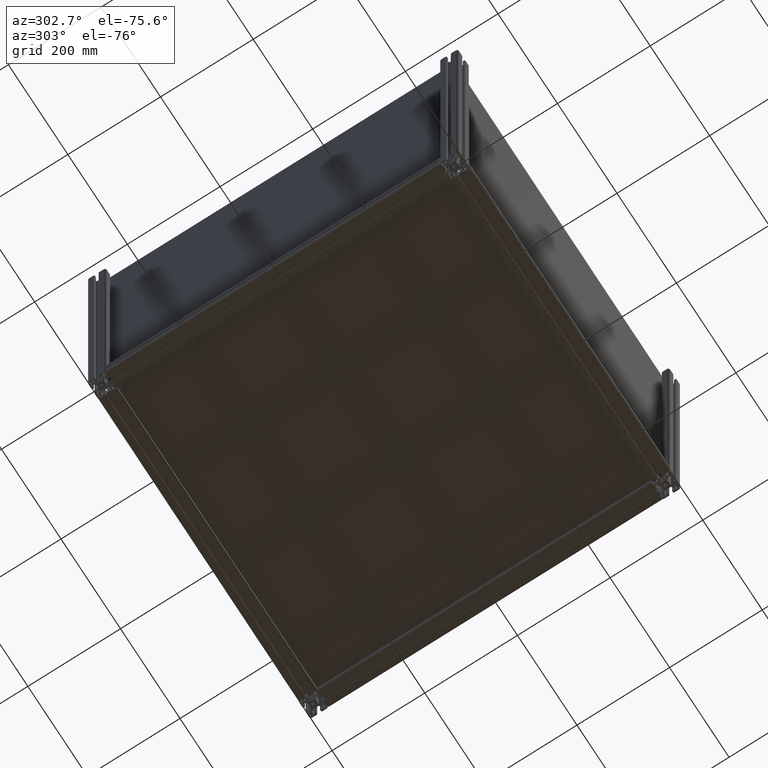
[diagram: clean part render]
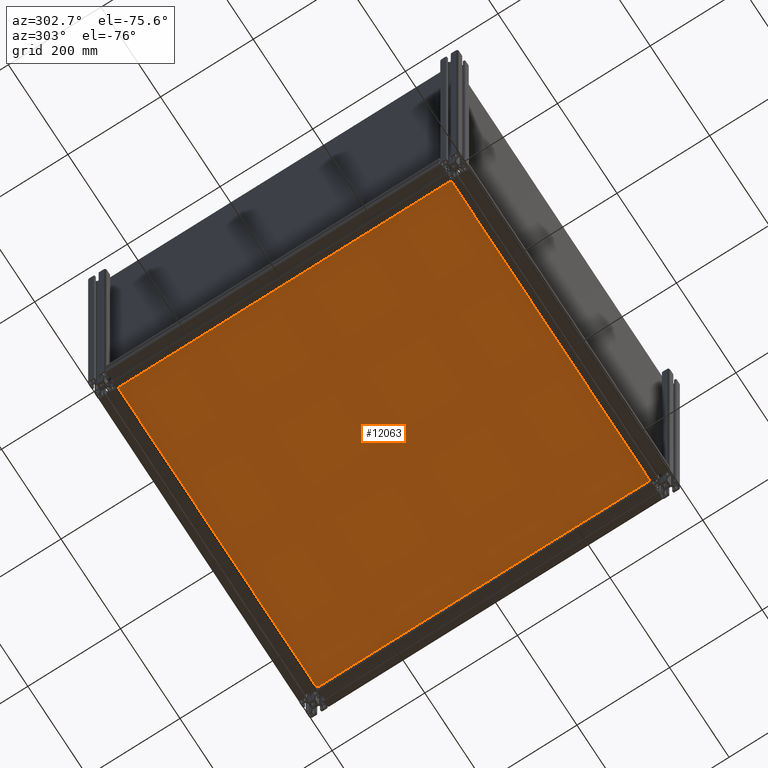
[diagram: same view with one face highlighted and labeled with its STEP entity id]
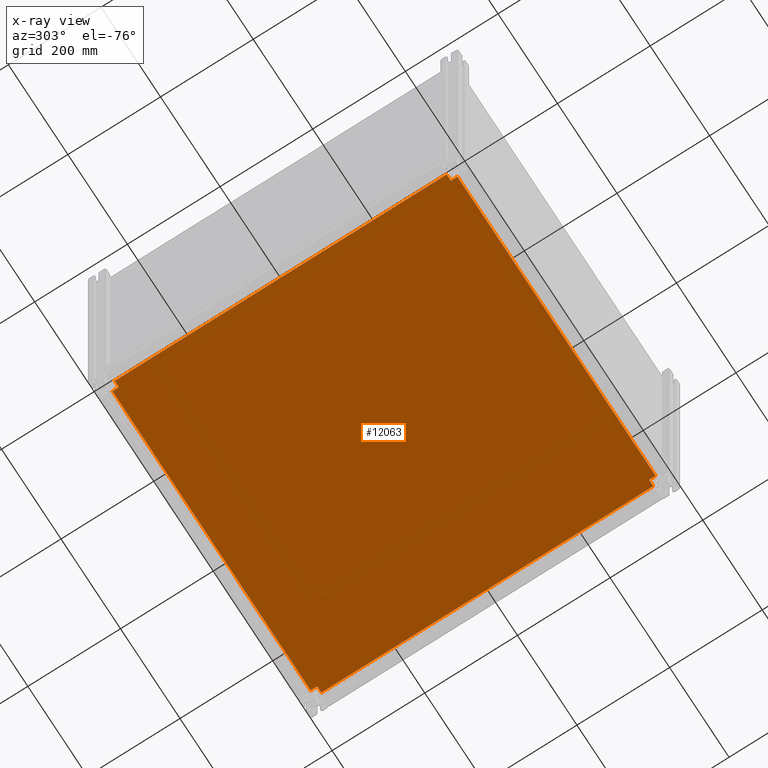
[diagram: x-ray of the same camera — body ghosted, the highlighted face saturated]
A machine part, auxiliary view. The second image highlights one B-rep face of the part: STEP entity #12063.
The next image is the same camera in x-ray: the body ghosted, the highlighted face saturated — about 0% of this face is hidden behind the body in this view.
In plain terms, the highlighted planar face has unit normal (0, 0, 1).
Its self-contained STEP definition (entity closure, byte-faithful):
#89 = ORIENTED_EDGE ( 'NONE', *, *, #271, .F. ) ;
#271 = EDGE_CURVE ( 'NONE', #13775, #2434, #14821, .T. ) ;
#292 = ORIENTED_EDGE ( 'NONE', *, *, #2234, .F. ) ;
#802 = CARTESIAN_POINT ( 'NONE',  ( -600.7269624573378906, 257.8730375426625301, -2.000000000000000000 ) ) ;
#907 = LINE ( 'NONE', #1103, #934 ) ;
#934 = VECTOR ( 'NONE', #6260, 1000.000000000000000 ) ;
#984 = CARTESIAN_POINT ( 'NONE',  ( -600.7269624573378906, -486.9269624573379929, -2.000000000000000000 ) ) ;
#1097 = AXIS2_PLACEMENT_3D ( 'NONE', #13918, #10070, #6105 ) ;
#1103 = CARTESIAN_POINT ( 'NONE',  ( -586.7269624573381179, 257.8730375426625301, -2.000000000000000000 ) ) ;
#1586 = LINE ( 'NONE', #9046, #6793 ) ;
#1818 = CARTESIAN_POINT ( 'NONE',  ( 80.07303754265417695, -486.9269624573374813, -2.000000000000000000 ) ) ;
#2009 = VERTEX_POINT ( 'NONE', #12698 ) ;
#2188 = DIRECTION ( 'NONE',  ( 0.000000000000000000, -1.000000000000000000, 0.000000000000000000 ) ) ;
#2234 = EDGE_CURVE ( 'NONE', #14566, #13775, #12954, .T. ) ;
#2434 = VERTEX_POINT ( 'NONE', #3940 ) ;
#2643 = DIRECTION ( 'NONE',  ( -1.117974313196652496E-16, 1.000000000000000000, 0.000000000000000000 ) ) ;
#2690 = EDGE_CURVE ( 'NONE', #5659, #13644, #8462, .T. ) ;
#2761 = ORIENTED_EDGE ( 'NONE', *, *, #2919, .F. ) ;
#2919 = EDGE_CURVE ( 'NONE', #2009, #14566, #9100, .T. ) ;
#2934 = CARTESIAN_POINT ( 'NONE',  ( 80.07303754266177975, 243.8730375426625301, -2.000000000000000000 ) ) ;
#3013 = CARTESIAN_POINT ( 'NONE',  ( 94.07303754265416273, -472.9269624573374244, -2.000000000000000000 ) ) ;
#3065 = EDGE_CURVE ( 'NONE', #13644, #5981, #14571, .T. ) ;
#3286 = EDGE_CURVE ( 'NONE', #2434, #6646, #9583, .T. ) ;
#3659 = VECTOR ( 'NONE', #7830, 1000.000000000000000 ) ;
#3769 = DIRECTION ( 'NONE',  ( 9.912705577010318647E-16, 1.000000000000000000, -0.000000000000000000 ) ) ;
#3894 = CARTESIAN_POINT ( 'NONE',  ( -600.7269624573381179, 243.8730375426625301, -2.000000000000000000 ) ) ;
#3940 = CARTESIAN_POINT ( 'NONE',  ( 80.07303754265419116, -472.9269624573374244, -2.000000000000000000 ) ) ;
#4148 = CARTESIAN_POINT ( 'NONE',  ( -586.7269624573381179, 243.8730375426625301, -2.000000000000000000 ) ) ;
#4859 = CARTESIAN_POINT ( 'NONE',  ( 80.07303754265419116, -472.9269624573374244, -2.000000000000000000 ) ) ;
#5130 = CARTESIAN_POINT ( 'NONE',  ( -600.7269624573378906, 257.8730375426625301, -2.000000000000000000 ) ) ;
#5460 = DIRECTION ( 'NONE',  ( 1.000000000000000000, -0.000000000000000000, -0.000000000000000000 ) ) ;
#5537 = CARTESIAN_POINT ( 'NONE',  ( 94.07303754266177975, 243.8730375426625301, -2.000000000000000000 ) ) ;
#5659 = VERTEX_POINT ( 'NONE', #2934 ) ;
#5978 = VECTOR ( 'NONE', #2188, 1000.000000000000000 ) ;
#5981 = VERTEX_POINT ( 'NONE', #7400 ) ;
#6105 = DIRECTION ( 'NONE',  ( 1.000000000000000000, 0.000000000000000000, 0.000000000000000000 ) ) ;
#6121 = ORIENTED_EDGE ( 'NONE', *, *, #11449, .F. ) ;
#6260 = DIRECTION ( 'NONE',  ( 0.000000000000000000, -1.000000000000000000, 0.000000000000000000 ) ) ;
#6575 = LINE ( 'NONE', #5537, #11933 ) ;
#6646 = VERTEX_POINT ( 'NONE', #9657 ) ;
#6793 = VECTOR ( 'NONE', #2643, 1000.000000000000000 ) ;
#7006 = DIRECTION ( 'NONE',  ( 1.000000000000000000, 0.000000000000000000, 0.000000000000000000 ) ) ;
#7136 = ORIENTED_EDGE ( 'NONE', *, *, #3286, .F. ) ;
#7323 = ORIENTED_EDGE ( 'NONE', *, *, #16093, .F. ) ;
#7400 = CARTESIAN_POINT ( 'NONE',  ( -586.7269624573381179, 257.8730375426625301, -2.000000000000000000 ) ) ;
#7478 = LINE ( 'NONE', #7719, #7636 ) ;
#7636 = VECTOR ( 'NONE', #11446, 1000.000000000000000 ) ;
#7661 = CARTESIAN_POINT ( 'NONE',  ( 80.07303754266179396, 257.8730375426625301, -2.000000000000000000 ) ) ;
#7719 = CARTESIAN_POINT ( 'NONE',  ( -586.7269624573458486, -472.9269624573374244, -2.000000000000000000 ) ) ;
#7830 = DIRECTION ( 'NONE',  ( -1.000000000000000000, 0.000000000000000000, 0.000000000000000000 ) ) ;
#7832 = CARTESIAN_POINT ( 'NONE',  ( 80.07303754266179396, 257.8730375426625301, -2.000000000000000000 ) ) ;
#7838 = CARTESIAN_POINT ( 'NONE',  ( -600.7269624573458486, -472.9269624573374244, -2.000000000000000000 ) ) ;
#7981 = ORIENTED_EDGE ( 'NONE', *, *, #12095, .F. ) ;
#8134 = VECTOR ( 'NONE', #3769, 1000.000000000000000 ) ;
#8193 = DIRECTION ( 'NONE',  ( -1.000000000000000000, 0.000000000000000000, 0.000000000000000000 ) ) ;
#8244 = ORIENTED_EDGE ( 'NONE', *, *, #14387, .F. ) ;
#8462 = LINE ( 'NONE', #7661, #8134 ) ;
#9046 = CARTESIAN_POINT ( 'NONE',  ( 94.07303754266186502, -486.9269624573379929, -2.000000000000000000 ) ) ;
#9100 = LINE ( 'NONE', #15591, #9243 ) ;
#9243 = VECTOR ( 'NONE', #16036, 1000.000000000000000 ) ;
#9469 = VECTOR ( 'NONE', #14842, 1000.000000000000000 ) ;
#9538 = DIRECTION ( 'NONE',  ( -1.000000000000000000, 0.000000000000000000, 0.000000000000000000 ) ) ;
#9583 = LINE ( 'NONE', #3013, #14946 ) ;
#9657 = CARTESIAN_POINT ( 'NONE',  ( 94.07303754266186502, -472.9269624573374244, -2.000000000000000000 ) ) ;
#10070 = DIRECTION ( 'NONE',  ( 0.000000000000000000, 0.000000000000000000, 1.000000000000000000 ) ) ;
#10123 = VERTEX_POINT ( 'NONE', #3894 ) ;
#11446 = DIRECTION ( 'NONE',  ( 1.000000000000000000, -0.000000000000000000, -0.000000000000000000 ) ) ;
#11449 = EDGE_CURVE ( 'NONE', #5981, #13663, #907, .T. ) ;
#11775 = EDGE_CURVE ( 'NONE', #6646, #14431, #1586, .T. ) ;
#11933 = VECTOR ( 'NONE', #9538, 1000.000000000000000 ) ;
#12063 = ADVANCED_FACE ( 'NONE', ( #12960 ), #15322, .F. ) ;
#12095 = EDGE_CURVE ( 'NONE', #15694, #2009, #7478, .T. ) ;
#12252 = ORIENTED_EDGE ( 'NONE', *, *, #2690, .F. ) ;
#12698 = CARTESIAN_POINT ( 'NONE',  ( -586.7269624573458486, -472.9269624573374244, -2.000000000000000000 ) ) ;
#12797 = ORIENTED_EDGE ( 'NONE', *, *, #14065, .F. ) ;
#12954 = LINE ( 'NONE', #984, #13288 ) ;
#12960 = FACE_OUTER_BOUND ( 'NONE', #15657, .T. ) ;
#13288 = VECTOR ( 'NONE', #7006, 1000.000000000000000 ) ;
#13644 = VERTEX_POINT ( 'NONE', #7832 ) ;
#13663 = VERTEX_POINT ( 'NONE', #15976 ) ;
#13775 = VERTEX_POINT ( 'NONE', #1818 ) ;
#13918 = CARTESIAN_POINT ( 'NONE',  ( 0.000000000000000000, 0.000000000000000000, -2.000000000000000000 ) ) ;
#14065 = EDGE_CURVE ( 'NONE', #10123, #15694, #16594, .T. ) ;
#14103 = ORIENTED_EDGE ( 'NONE', *, *, #11775, .F. ) ;
#14123 = CARTESIAN_POINT ( 'NONE',  ( 94.07303754266177975, 243.8730375426625301, -2.000000000000000000 ) ) ;
#14213 = LINE ( 'NONE', #4148, #14424 ) ;
#14387 = EDGE_CURVE ( 'NONE', #14431, #5659, #6575, .T. ) ;
#14424 = VECTOR ( 'NONE', #8193, 1000.000000000000000 ) ;
#14431 = VERTEX_POINT ( 'NONE', #14123 ) ;
#14566 = VERTEX_POINT ( 'NONE', #16469 ) ;
#14571 = LINE ( 'NONE', #5130, #3659 ) ;
#14821 = LINE ( 'NONE', #4859, #9469 ) ;
#14842 = DIRECTION ( 'NONE',  ( 9.912705577010318647E-16, 1.000000000000000000, -0.000000000000000000 ) ) ;
#14946 = VECTOR ( 'NONE', #5460, 1000.000000000000000 ) ;
#15322 = PLANE ( 'NONE',  #1097 ) ;
#15591 = CARTESIAN_POINT ( 'NONE',  ( -586.7269624573458486, -472.9269624573374244, -2.000000000000000000 ) ) ;
#15657 = EDGE_LOOP ( 'NONE', ( #14103, #7136, #89, #292, #2761, #7981, #12797, #7323, #6121, #16171, #12252, #8244 ) ) ;
#15694 = VERTEX_POINT ( 'NONE', #7838 ) ;
#15976 = CARTESIAN_POINT ( 'NONE',  ( -586.7269624573381179, 243.8730375426625301, -2.000000000000000000 ) ) ;
#16036 = DIRECTION ( 'NONE',  ( 0.000000000000000000, -1.000000000000000000, 0.000000000000000000 ) ) ;
#16093 = EDGE_CURVE ( 'NONE', #13663, #10123, #14213, .T. ) ;
#16171 = ORIENTED_EDGE ( 'NONE', *, *, #3065, .F. ) ;
#16469 = CARTESIAN_POINT ( 'NONE',  ( -586.7269624573458486, -486.9269624573374813, -2.000000000000000000 ) ) ;
#16594 = LINE ( 'NONE', #802, #5978 ) ;